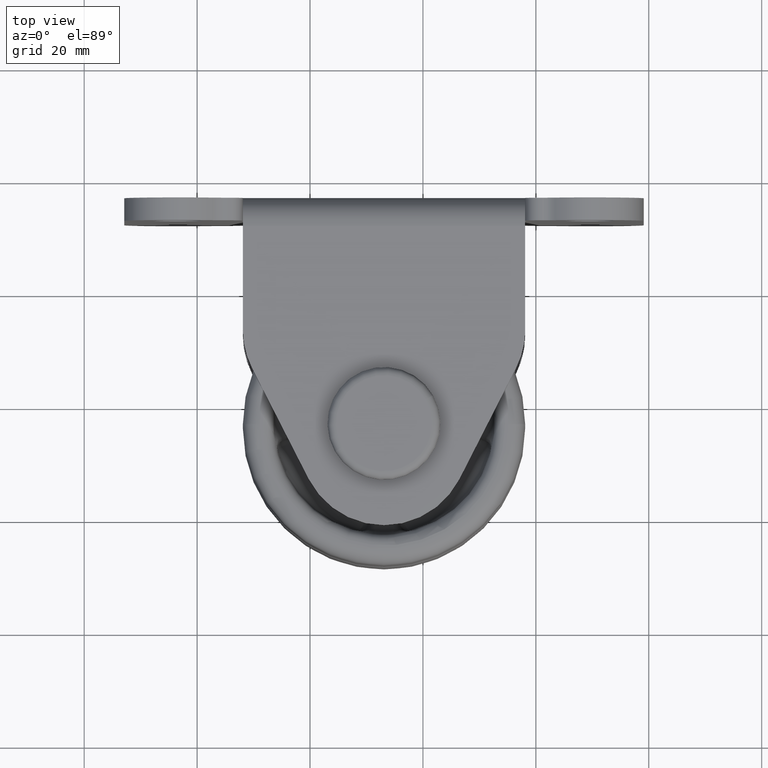
[diagram: clean part render]
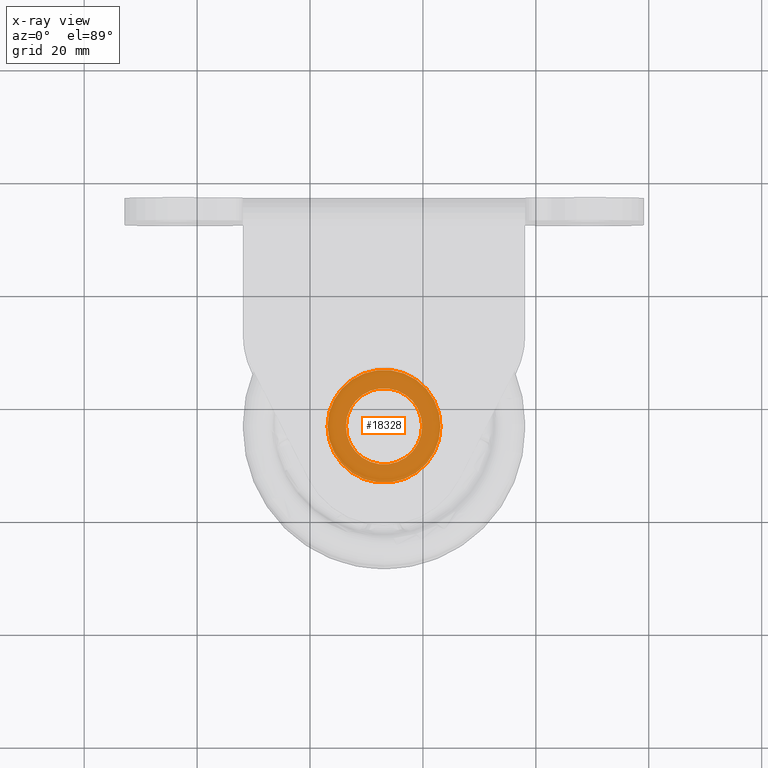
[diagram: x-ray — body ghosted, one internal face saturated and labeled with its STEP entity id]
A machine part, top view, then the same camera in x-ray: the body is ghosted and one INTERNAL B-rep face — a face not visible from any outside direction — is saturated and labeled: STEP entity #18328.
In plain terms, the highlighted planar face has unit normal (-0, 0, -1).
Its self-contained STEP definition (entity closure, byte-faithful):
#895 = CIRCLE ( 'NONE', #9470, 6.750000000000000888 ) ;
#1115 = AXIS2_PLACEMENT_3D ( 'NONE', #15617, #1242, #11337 ) ;
#1207 = CARTESIAN_POINT ( 'NONE',  ( 3.105420989485610406, -3.563915416284890281, 3.999999999999945377 ) ) ;
#1232 = AXIS2_PLACEMENT_3D ( 'NONE', #7546, #15736, #12701 ) ;
#1242 = DIRECTION ( 'NONE',  ( -0.000000000000000000, 3.491481338843135327E-15, -1.000000000000000000 ) ) ;
#2983 = DIRECTION ( 'NONE',  ( 1.927267581768714402E-15, -2.928868091231816313E-15, 1.000000000000000000 ) ) ;
#4019 = CARTESIAN_POINT ( 'NONE',  ( -0.1445790267197649970, -3.564383147871522439, 3.999999999999935163 ) ) ;
#5629 = VERTEX_POINT ( 'NONE', #1207 ) ;
#6633 = FACE_BOUND ( 'NONE', #15477, .T. ) ;
#6774 = AXIS2_PLACEMENT_3D ( 'NONE', #14682, #11712, #25818 ) ;
#7173 = CARTESIAN_POINT ( 'NONE',  ( -16.89457901051440203, -3.563915416284890281, 3.999999999999945377 ) ) ;
#7546 = CARTESIAN_POINT ( 'NONE',  ( -6.894579010514368278, -3.563915416284883175, 3.999999999999945377 ) ) ;
#8861 = ORIENTED_EDGE ( 'NONE', *, *, #16875, .T. ) ;
#9470 = AXIS2_PLACEMENT_3D ( 'NONE', #18966, #2983, #21519 ) ;
#9915 = CIRCLE ( 'NONE', #10352, 10.00000000000000000 ) ;
#10352 = AXIS2_PLACEMENT_3D ( 'NONE', #13195, #12806, #20988 ) ;
#11337 = DIRECTION ( 'NONE',  ( 0.000000000000000000, 1.000000000000000000, 3.491481338843135327E-15 ) ) ;
#11694 = ORIENTED_EDGE ( 'NONE', *, *, #14660, .F. ) ;
#11712 = DIRECTION ( 'NONE',  ( 0.000000000000000000, -3.491481338843135327E-15, 1.000000000000000000 ) ) ;
#12701 = DIRECTION ( 'NONE',  ( -0.9999999975992005519, 6.929356839083655598E-05, 1.927470528863118556E-15 ) ) ;
#12702 = VERTEX_POINT ( 'NONE', #4019 ) ;
#12806 = DIRECTION ( 'NONE',  ( 0.000000000000000000, -3.491481338843135327E-15, 1.000000000000000000 ) ) ;
#13195 = CARTESIAN_POINT ( 'NONE',  ( -6.894579010514389594, -3.563915416284890281, 3.999999999999945377 ) ) ;
#14660 = EDGE_CURVE ( 'NONE', #17450, #5629, #14927, .T. ) ;
#14682 = CARTESIAN_POINT ( 'NONE',  ( -6.894579010514389594, -3.563915416284890281, 3.999999999999945377 ) ) ;
#14927 = CIRCLE ( 'NONE', #6774, 10.00000000000000000 ) ;
#15467 = EDGE_LOOP ( 'NONE', ( #11694, #22814 ) ) ;
#15477 = EDGE_LOOP ( 'NONE', ( #8861, #16584 ) ) ;
#15617 = CARTESIAN_POINT ( 'NONE',  ( -16.89457901051440203, -3.563915416284890281, 3.999999999999945377 ) ) ;
#15736 = DIRECTION ( 'NONE',  ( 1.927267581768714402E-15, -2.928868091231816313E-15, 1.000000000000000000 ) ) ;
#16584 = ORIENTED_EDGE ( 'NONE', *, *, #22420, .T. ) ;
#16875 = EDGE_CURVE ( 'NONE', #12702, #25445, #20957, .T. ) ;
#17450 = VERTEX_POINT ( 'NONE', #7173 ) ;
#18328 = ADVANCED_FACE ( 'NONE', ( #18971, #6633 ), #19896, .T. ) ;
#18966 = CARTESIAN_POINT ( 'NONE',  ( -6.894579010514368278, -3.563915416284883175, 3.999999999999945377 ) ) ;
#18971 = FACE_OUTER_BOUND ( 'NONE', #15467, .T. ) ;
#19896 = PLANE ( 'NONE',  #1115 ) ;
#20047 = CARTESIAN_POINT ( 'NONE',  ( -13.64457899430897214, -3.563447684698244355, 3.999999999999958256 ) ) ;
#20957 = CIRCLE ( 'NONE', #1232, 6.750000000000000888 ) ;
#20988 = DIRECTION ( 'NONE',  ( 1.000000000000000000, 0.000000000000000000, 0.000000000000000000 ) ) ;
#21519 = DIRECTION ( 'NONE',  ( -0.9999999975992005519, 6.929356839083655598E-05, 1.927470528863118556E-15 ) ) ;
#22420 = EDGE_CURVE ( 'NONE', #25445, #12702, #895, .T. ) ;
#22598 = EDGE_CURVE ( 'NONE', #5629, #17450, #9915, .T. ) ;
#22814 = ORIENTED_EDGE ( 'NONE', *, *, #22598, .F. ) ;
#25445 = VERTEX_POINT ( 'NONE', #20047 ) ;
#25818 = DIRECTION ( 'NONE',  ( 1.000000000000000000, 0.000000000000000000, 0.000000000000000000 ) ) ;